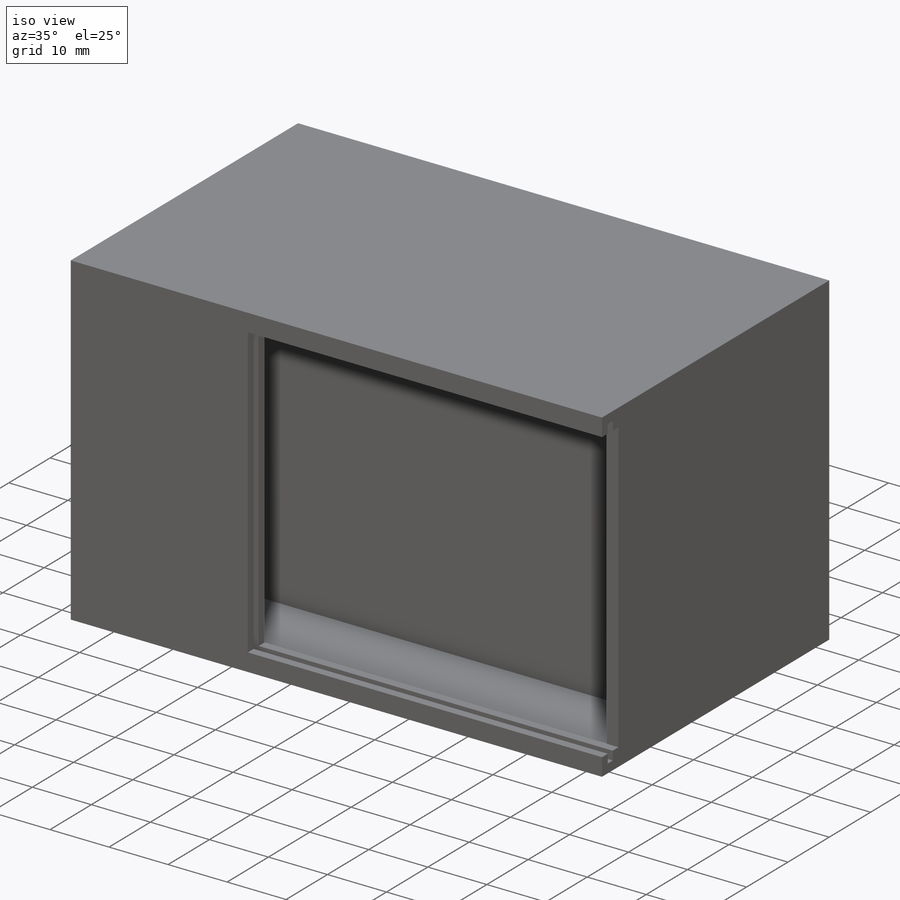
[diagram: iso view]
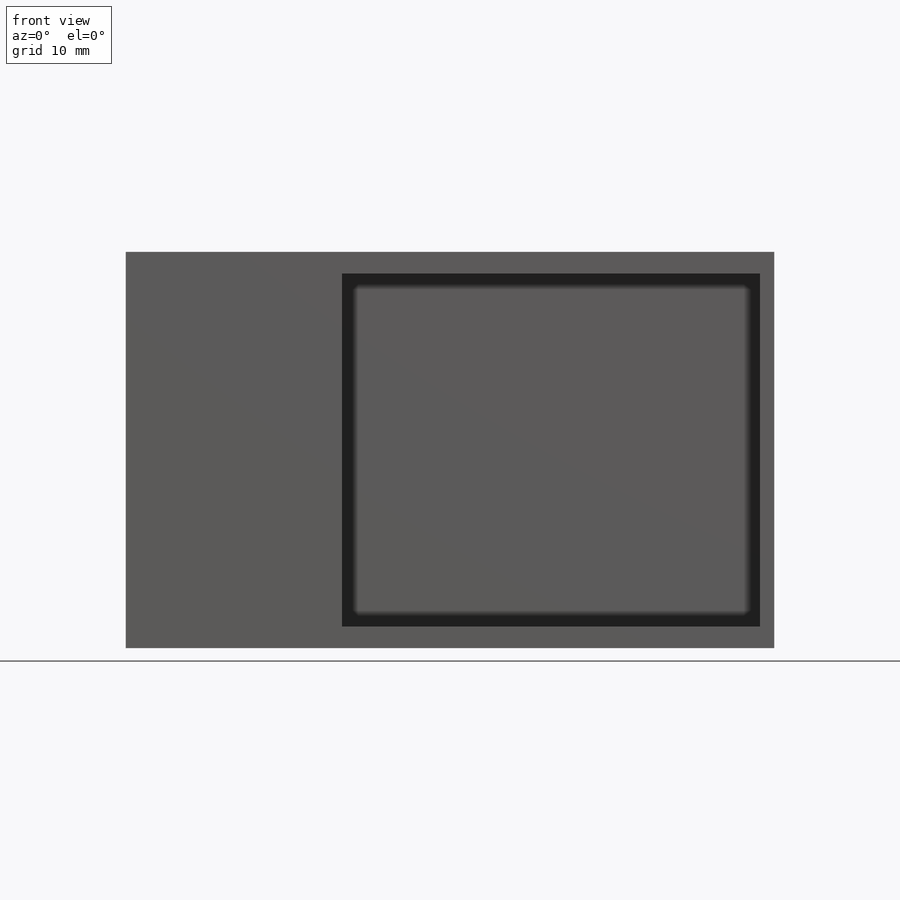
[diagram: front view]
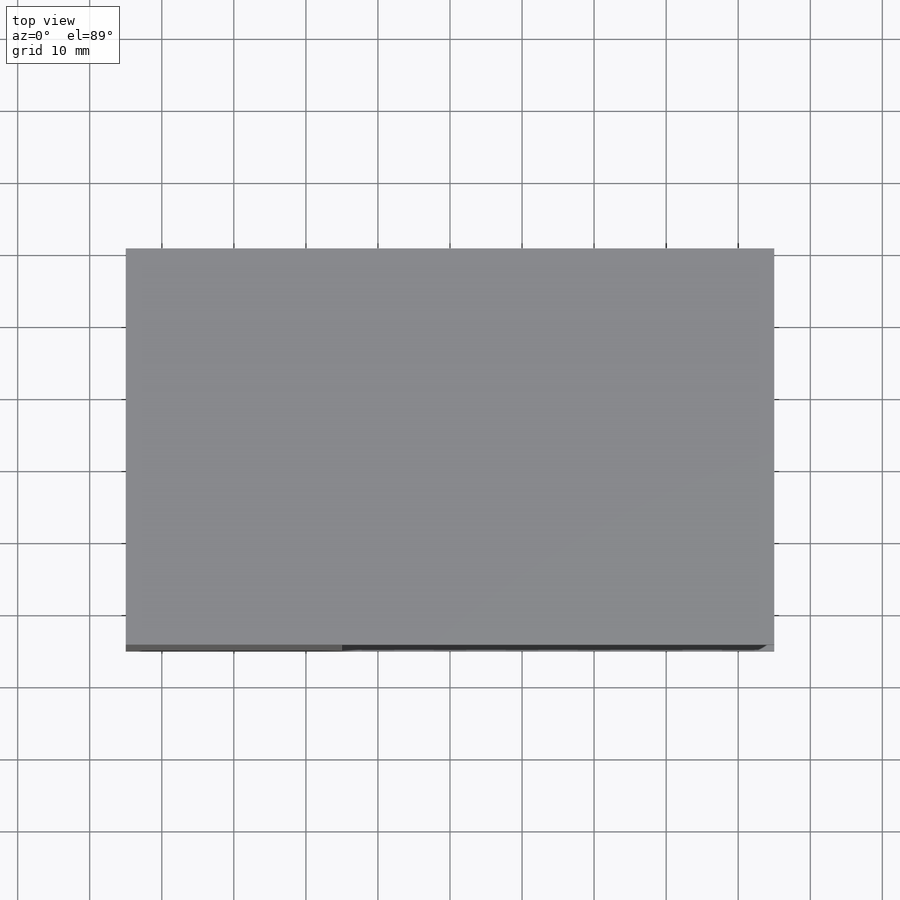
[diagram: top view]
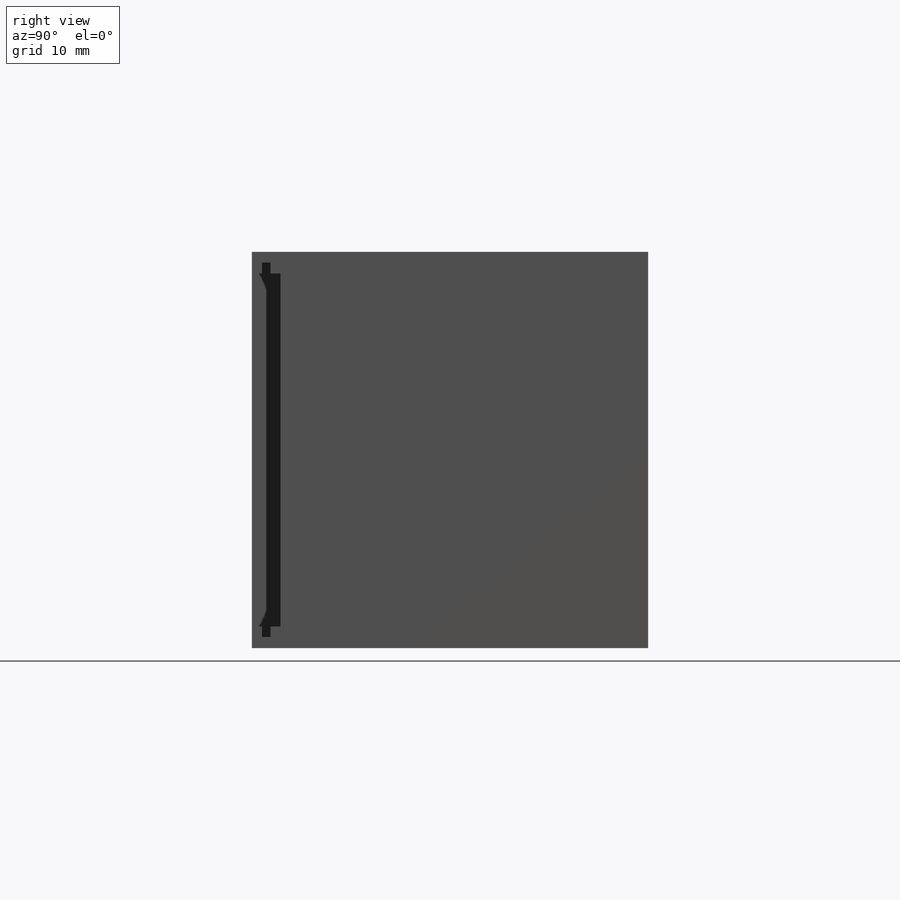
[diagram: right view]
SOLIDWORKS PART (.sldprt)
format: sldprt  version: not decoded by parser v0  size: 344,064 bytes
history: native  units: mm
features: sketch x10, extrude x5, cut_extrude x5, material x1, shell x1 (+12 scaffold rows collapsed)
feature tree (34):
  scaffold x12  (default folders/planes/origin — collapsed)
  material  "Material <not specified>"
  sketch  "Sketch1"  dims[D1=90.0mm D2=55.0mm]
  extrude  "Boss-Extrude1"  Depth=55mm
  shell  "Shell1"  Thickness=2mm
  sketch  "Sketch2"  dims[D1=4.0mm]
  extrude  "Boss-Extrude2"  [1 undecoded]
  sketch  "Sketch3"  dims[D1=4.0mm D2=3.0mm D3=3.0mm]
  cut_extrude  "Cut-Extrude1"  Depth=60mm
  sketch  "Sketch4"  dims[D1=1.5mm D2=1.5mm D3=1.4mm D4=1.2mm]
  cut_extrude  "Cut-Extrude2"  Depth=61.5mm
  sketch  "Sketch5"  dims[D1=13.0mm D2=19.5mm D3=6.0mm D4=17.5mm]
  cut_extrude  "Cut-Extrude3"  Depth=10mm
  sketch  "Sketch7"  dims[c1.D1=10.0mm c1.D3=10.0mm c1.D6=10.0mm c1.D8=10.0mm c1.D2=6.0mm c1.D4=28.5mm c1.D5=86.0mm c2.D2=6.0mm c2.D5=16.0mm c2.D7=~17.74385mm c3.D2=6.0mm c3.D8=~17.74385mm c3.D7=8.0mm c3.D9=24.0mm c3.D10=24.0mm c3.D11=10.0mm c3.D12=30.0mm]
  extrude  "Boss-Extrude3"  Depth=5mm
  sketch  "Sketch8"  dims[c1.D1=2.8mm c1.D2=2.8mm c1.D3=2.8mm c1.D4=2.8mm c1.D5=2.8mm c1.D6=2.8mm c1.D7=2.8mm c2.D5=0.0mm c2.D6=0.0mm c2.D7=0.0mm]
  cut_extrude  "Cut-Extrude4"  Depth=5mm
  sketch  "Sketch9"  dims[D1=13.5mm D2=4.0mm]
  extrude  "Boss-Extrude4"  [1 undecoded]
  sketch  "Sketch11"  dims[c1.D1=4.0mm c1.D2=4.0mm c2.D1=0.0mm c2.D2=4.0mm c2.D3=0.0mm c2.D4=35.0mm c2.D5=20.0mm]
  extrude  "Boss-Extrude5"  Depth=18mm
  sketch  "Sketch12"
  cut_extrude  "Cut-Extrude5"  [1 undecoded]
decode coverage: 17 of 21 modeling features carry decoded parameters
note: ~ marks probable driven/reference dimensions
note: 3 parameter values undecoded
summary: no parameter record found for 3 features
note: suppression state not decoded; provenance and decode notes live in map.json
